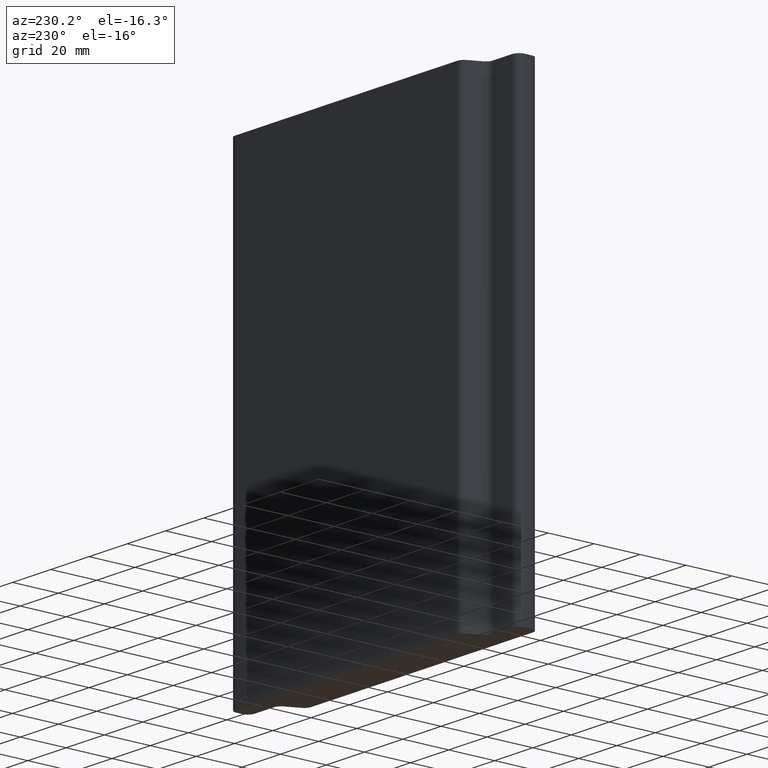
[diagram: clean part render]
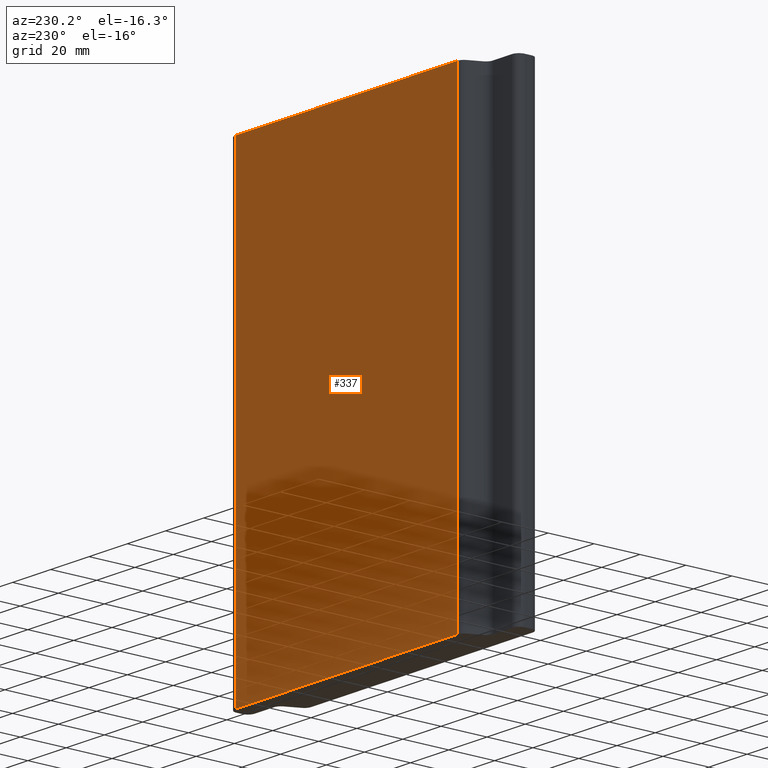
[diagram: same view with one face highlighted and labeled with its STEP entity id]
A machine part, auxiliary view. The second image highlights one B-rep face of the part: STEP entity #337.
In plain terms, the highlighted planar face has unit normal (0, 1, 0).
Its self-contained STEP definition (entity closure, byte-faithful):
#51=FACE_OUTER_BOUND('',#69,.T.);
#69=EDGE_LOOP('',(#267,#268,#269,#270));
#99=LINE('',#568,#131);
#100=LINE('',#571,#132);
#101=LINE('',#573,#133);
#102=LINE('',#574,#134);
#131=VECTOR('',#465,10.);
#132=VECTOR('',#468,10.);
#133=VECTOR('',#469,10.);
#134=VECTOR('',#470,10.);
#163=VERTEX_POINT('',#564);
#164=VERTEX_POINT('',#566);
#165=VERTEX_POINT('',#570);
#166=VERTEX_POINT('',#572);
#207=EDGE_CURVE('',#163,#164,#99,.T.);
#208=EDGE_CURVE('',#165,#163,#100,.T.);
#209=EDGE_CURVE('',#166,#164,#101,.T.);
#210=EDGE_CURVE('',#165,#166,#102,.T.);
#267=ORIENTED_EDGE('',*,*,#208,.T.);
#268=ORIENTED_EDGE('',*,*,#207,.T.);
#269=ORIENTED_EDGE('',*,*,#209,.F.);
#270=ORIENTED_EDGE('',*,*,#210,.F.);
#321=PLANE('',#381);
#337=ADVANCED_FACE('',(#51),#321,.T.);
#381=AXIS2_PLACEMENT_3D('',#569,#466,#467);
#465=DIRECTION('',(0.,0.,1.));
#466=DIRECTION('center_axis',(9.29340653877338E-10,1.,0.));
#467=DIRECTION('ref_axis',(-1.,9.29340653877338E-10,0.));
#468=DIRECTION('',(-1.,9.29340653877338E-10,0.));
#469=DIRECTION('',(-1.,9.29340653877338E-10,0.));
#470=DIRECTION('',(0.,0.,1.));
#564=CARTESIAN_POINT('',(-58.022359531181,18.0000000127296,0.));
#566=CARTESIAN_POINT('',(-58.022359531181,18.0000000127296,200.));
#568=CARTESIAN_POINT('',(-58.022359531181,18.0000000127296,0.));
#569=CARTESIAN_POINT('Origin',(58.022359531181,17.9999999048845,0.));
#570=CARTESIAN_POINT('',(58.022359531181,17.9999999048845,0.));
#571=CARTESIAN_POINT('',(58.022359531181,17.9999999048845,0.));
#572=CARTESIAN_POINT('',(58.022359531181,17.9999999048845,200.));
#573=CARTESIAN_POINT('',(58.022359531181,17.9999999048845,200.));
#574=CARTESIAN_POINT('',(58.022359531181,17.9999999048845,0.));